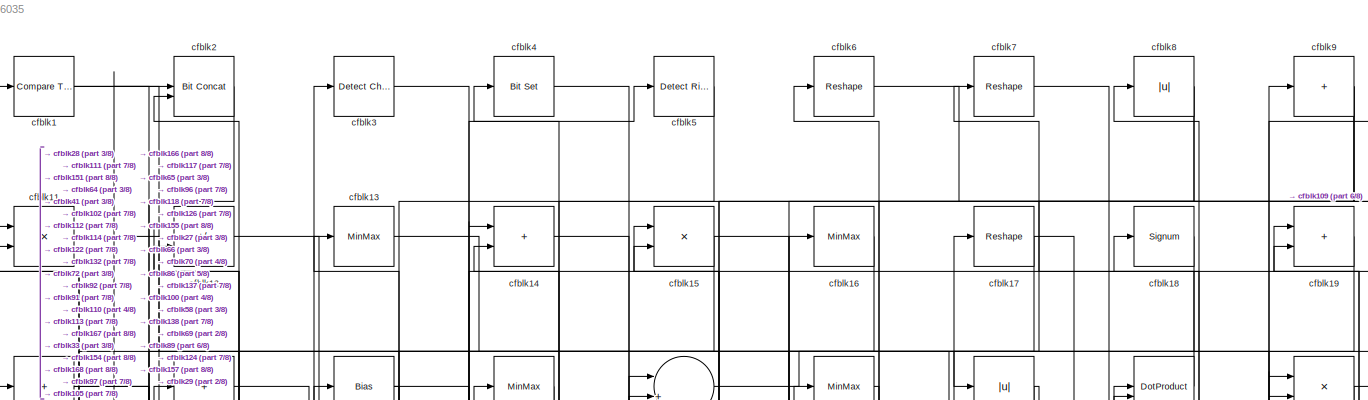
[diagram: root canvas - part 1/8, full width, top band]
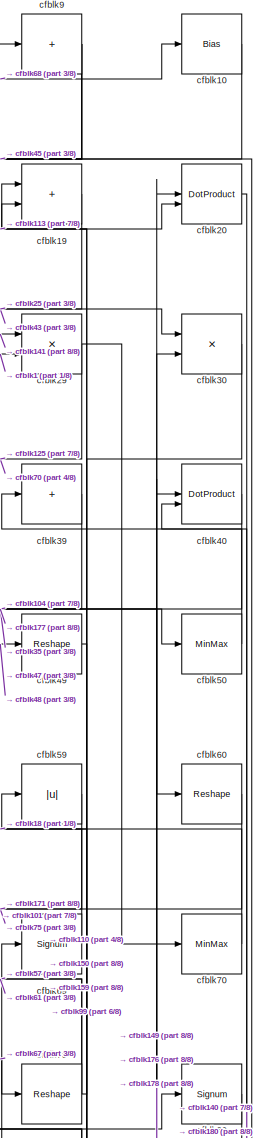
[diagram: root canvas - part 2/8, top right region]
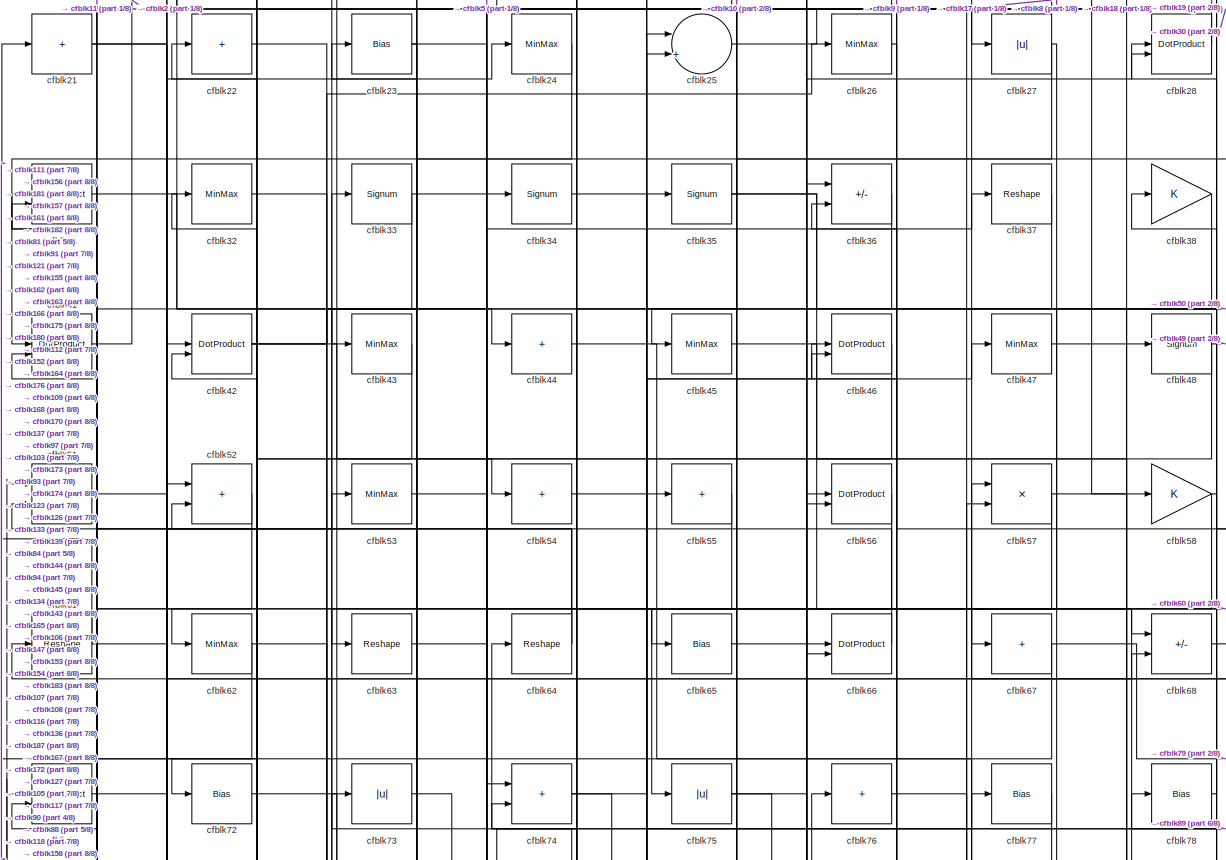
[diagram: root canvas - part 3/8, full width, top band]
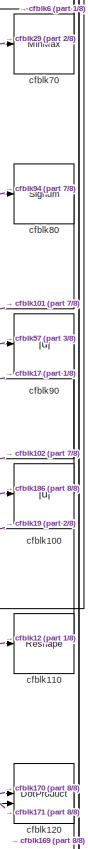
[diagram: root canvas - part 4/8, middle right region]
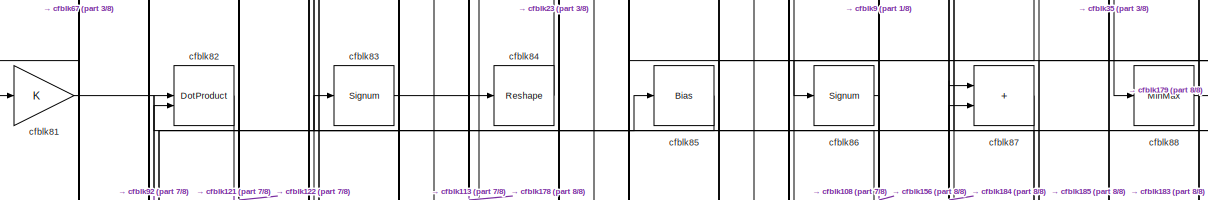
[diagram: root canvas - part 5/8, full width, middle band]
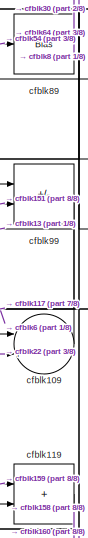
[diagram: root canvas - part 6/8, middle right region]
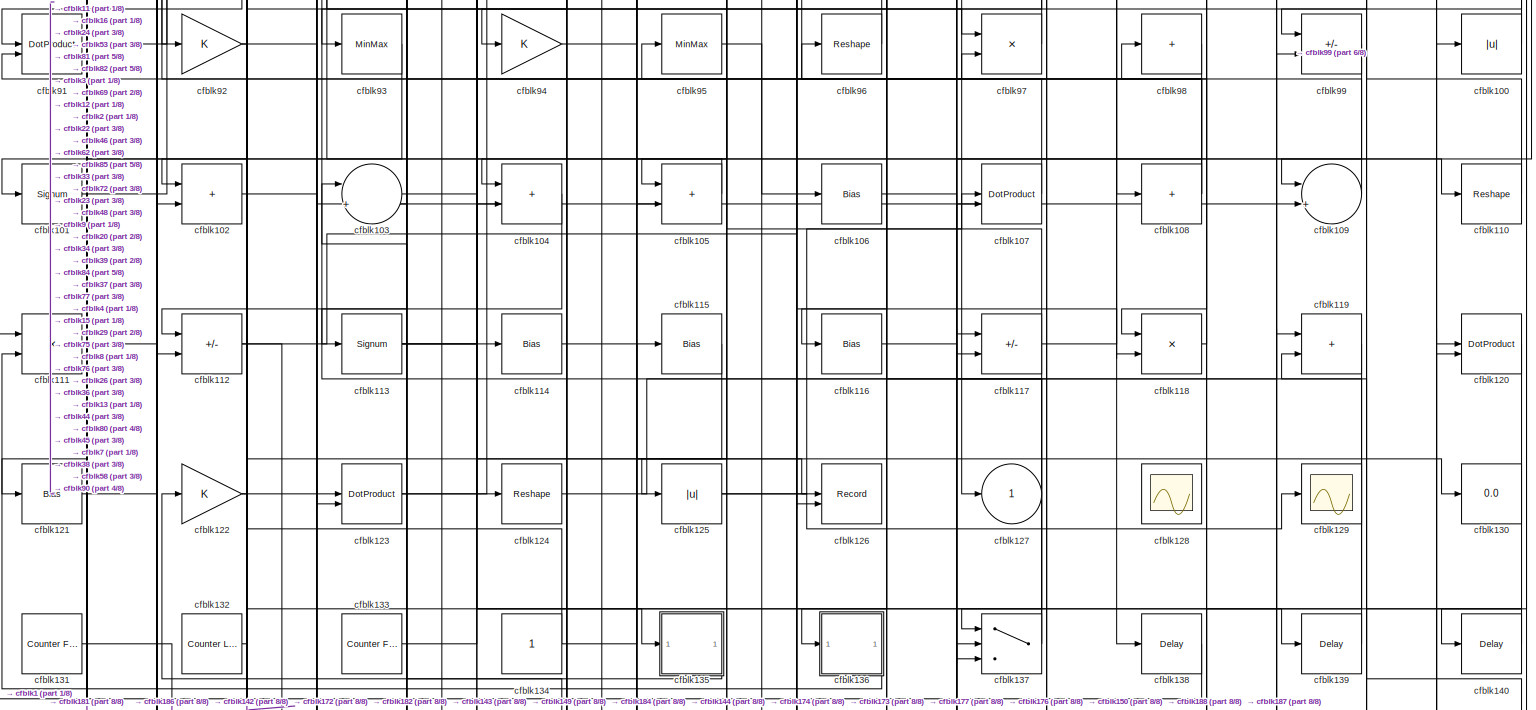
[diagram: root canvas - part 7/8, full width, middle band]
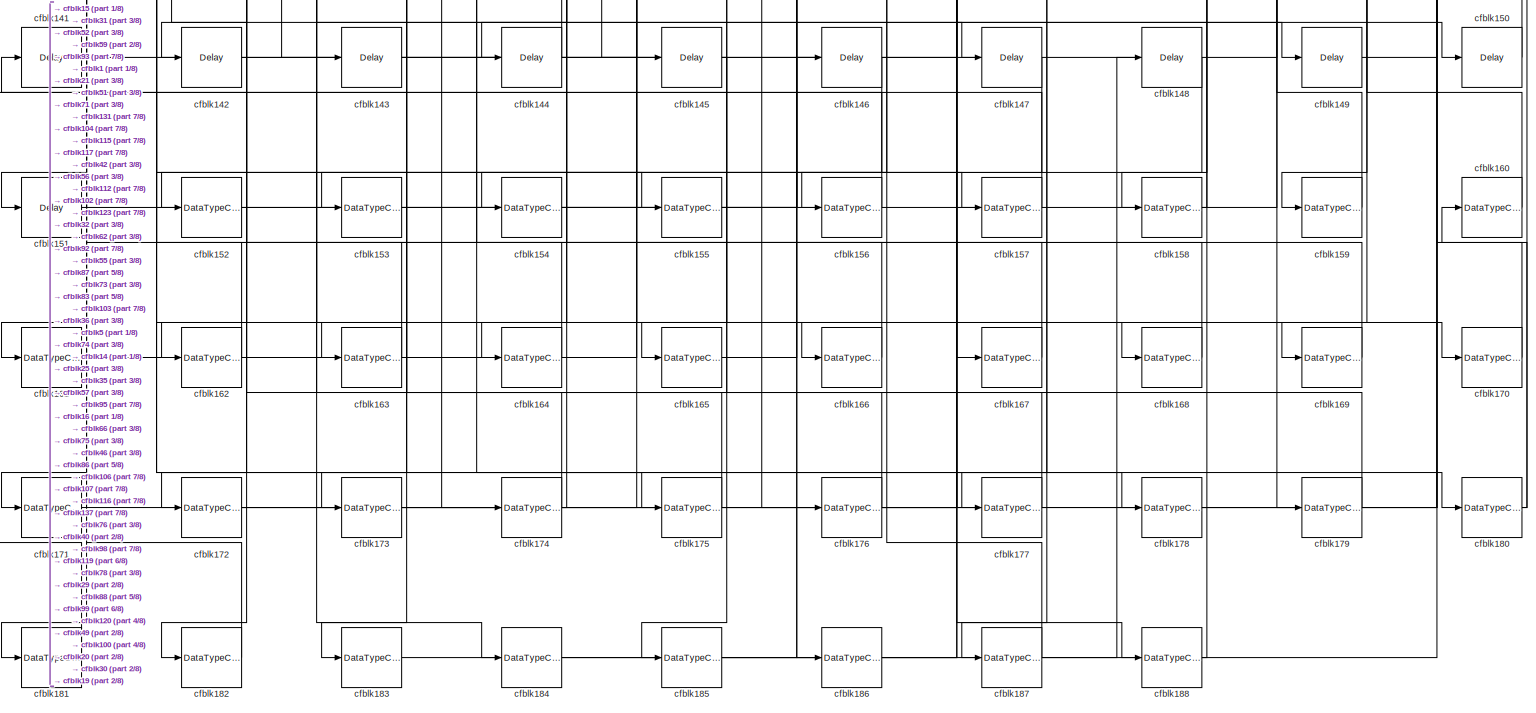
[diagram: root canvas - part 8/8, full width, bottom band]
MODEL slx_b8f495e16035
KIND model
CONFIG AbsTol = auto
CONFIG EnableMultiTasking = off
CONFIG FixedStep = auto
CONFIG MaxStep = auto
CONFIG MinStep = auto
CONFIG RelTol = 1e-3
CONFIG SampleTimeConstraint = Unconstrained
CONFIG SolverName = VariableStepAuto
CONFIG StartTime = 0.0
CONFIG StopTime = 10.0
BLOCK [Reference] cfblk1  REF=hdlsllib/Logic and Bit
Operations/Compare
To Zero
  SourceBlock = hdlsllib/Logic and Bit\nOperations/Compare\nTo Zero
  SourceType = Compare To Zero
BLOCK [Bias] cfblk10
  Bias = 0.0
  SaturateOnIntegerOverflow = off
BLOCK [Abs] cfblk100
  SaturateOnIntegerOverflow = off
BLOCK [Signum] cfblk101
BLOCK [Sum] cfblk102
  IconShape = rectangular
BLOCK [Sum] cfblk103
  Inputs = |++
BLOCK [Sum] cfblk104
  IconShape = rectangular
BLOCK [Sum] cfblk105
  IconShape = rectangular
BLOCK [Bias] cfblk106
  Bias = 0.0
  SaturateOnIntegerOverflow = off
BLOCK [DotProduct] cfblk107
  OutDataTypeStr = Inherit: Inherit via internal rule
BLOCK [Sum] cfblk108
  IconShape = rectangular
  Inputs = +
BLOCK [Sum] cfblk109
  Inputs = |++
BLOCK [Product] cfblk11
  Inputs = */
  RndMeth = Zero
  SaturateOnIntegerOverflow = on
BLOCK [Reshape] cfblk110
BLOCK [Product] cfblk111
  Inputs = */
  RndMeth = Zero
  SaturateOnIntegerOverflow = on
BLOCK [Sum] cfblk112
  IconShape = rectangular
  Inputs = +-
BLOCK [Signum] cfblk113
BLOCK [Bias] cfblk114
  Bias = 0.0
  SaturateOnIntegerOverflow = off
BLOCK [Bias] cfblk115
  Bias = 0.0
  SaturateOnIntegerOverflow = off
BLOCK [Bias] cfblk116
  Bias = 0.0
  SaturateOnIntegerOverflow = off
BLOCK [Sum] cfblk117
  IconShape = rectangular
  Inputs = +-
BLOCK [Product] cfblk118
  Inputs = */
  RndMeth = Zero
  SaturateOnIntegerOverflow = on
BLOCK [Sum] cfblk119
  IconShape = rectangular
BLOCK [Sum] cfblk12
  IconShape = rectangular
  Inputs = +-
BLOCK [DotProduct] cfblk120
  OutDataTypeStr = Inherit: Inherit via internal rule
BLOCK [Bias] cfblk121
  Bias = 0.0
  SaturateOnIntegerOverflow = off
BLOCK [Gain] cfblk122
BLOCK [DotProduct] cfblk123
  OutDataTypeStr = Inherit: Inherit via internal rule
BLOCK [Reshape] cfblk124
BLOCK [Abs] cfblk125
  SaturateOnIntegerOverflow = off
BLOCK [Record] cfblk126
  CompatibilityTag = XY
  FileSettingsInternal = {"entries":[{"content":{"excelSettings":{"content":{},"type":"Streamout.ExcelSettings"}},"type":"Streamout.FileSettingStorage","uuid":""}],"packageUris":["http:\/\/schema.mathworks.com\/mf0\/streamout_blocks\/R2020a"],"version":"1.0"}
  Layout = [1 1]
  SignalsInternal = {"entries":[{"content":{"signals":[{"content":{"blockPath":[],"dimensions":[1],"domain":"","lineColor":"#a2142f","plots":[1],"port":1,"signalID":3065,"signalName":"XY Graph:1"},"type":"RecordBlkView.Signal","uuid":""},{"content":{"blockPath":[],"dimensions":[1],"domain":"","lineColor":"#139fff","plots":[1],"port":2,"signalID":3068,"signalName":"XY Graph:2"},"type":"RecordBlkView.Signal","uuid":""}...<+146ch>
  VisualizationBindings = {"xyplotplugin":{"info":[{"series":[{"bindingParametersList":[{"parameter":"X-Axis","signalID":3065,"signalName":"XY Graph:1"},{"parameter":"Y-Axis","signalID":3068,"signalName":"XY Graph:2"}],"seriesID":25029}],"subplotID":1}]}}
  st = -1
BLOCK [Outport] cfblk127
  VectorParamsAs1DForOutWhenUnconnected = off
BLOCK [Scope] cfblk128
  Floating = on
  NumInputPorts = 1
  ScopeSpecificationString = Simulink.scopes.TimeScopeBlockCfg('CurrentConfiguration', extmgr.ConfigurationSet(extmgr.Configuration('Core','General UI',true,'FigureColor',[0.156862745098039 0.156862745098039 0.156862745098039]),extmgr.Configuration('Core','Source UI',true),extmgr.Configuration('Sources','WiredSimulink',true,'DataLoggingVariableName','ScopeData1','DataLoggingSaveFormat','StructureWithTime','DataLoggingLimitDat...<+2713ch>
BLOCK [Scope] cfblk129
  Floating = off
  NumInputPorts = 1
  ScopeSpecificationString = Simulink.scopes.TimeScopeBlockCfg('CurrentConfiguration', extmgr.ConfigurationSet(extmgr.Configuration('Core','General UI',true),extmgr.Configuration('Core','Source UI',true),extmgr.Configuration('Sources','WiredSimulink',true,'DataLoggingVariableName','ScopeData2','DataLoggingSaveFormat','Array','DataLoggingLimitDataPoints',true,'DataLoggingDecimation','1'),extmgr.Configuration('Visuals','Time Do...<+868ch>
BLOCK [MinMax] cfblk13
BLOCK [Display] cfblk130
  Decimation = 1
BLOCK [Reference] cfblk131  REF=hdlsllib/Sources/Counter
Free-Running
  SourceBlock = hdlsllib/Sources/Counter\nFree-Running
  SourceType = Counter Free-Running
BLOCK [Reference] cfblk132  REF=hdlsllib/Sources/Counter
Limited
  SourceBlock = hdlsllib/Sources/Counter\nLimited
  SourceType = Counter Limited
BLOCK [Reference] cfblk133  REF=hdlsllib/Sources/Counter
Free-Running
  SourceBlock = hdlsllib/Sources/Counter\nFree-Running
  SourceType = Counter Free-Running
BLOCK [Constant] cfblk134
  SampleTime = -1
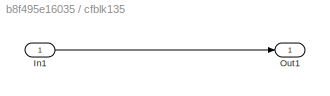
BLOCK [SubSystem] cfblk135
  LibrarySourceBlock = hdlsllib/Ports &\nSubsystems/Subsystem
BLOCK [Inport] cfblk135/In1
BLOCK [Outport] cfblk135/Out1
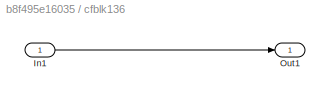
BLOCK [SubSystem] cfblk136
  LibrarySourceBlock = hdlsllib/Ports &\nSubsystems/Subsystem
BLOCK [Inport] cfblk136/In1
BLOCK [Outport] cfblk136/Out1
BLOCK [Switch] cfblk137
  InputSameDT = off
  SaturateOnIntegerOverflow = off
BLOCK [Delay] cfblk138
  InputPortMap = u0
  SampleTime = 1
BLOCK [Delay] cfblk139
  InputPortMap = u0
  SampleTime = 1
BLOCK [Sum] cfblk14
  IconShape = rectangular
BLOCK [Delay] cfblk140
  InputPortMap = u0
  SampleTime = 1
BLOCK [Delay] cfblk141
  InputPortMap = u0
  SampleTime = 1
BLOCK [Delay] cfblk142
  InputPortMap = u0
  SampleTime = 1
BLOCK [Delay] cfblk143
  InputPortMap = u0
  SampleTime = 1
BLOCK [Delay] cfblk144
  InputPortMap = u0
  SampleTime = 1
BLOCK [Delay] cfblk145
  InputPortMap = u0
  SampleTime = 1
BLOCK [Delay] cfblk146
  InputPortMap = u0
  SampleTime = 1
BLOCK [Delay] cfblk147
  InputPortMap = u0
  SampleTime = 1
BLOCK [Delay] cfblk148
  InputPortMap = u0
  SampleTime = 1
BLOCK [Delay] cfblk149
  InputPortMap = u0
  SampleTime = 1
BLOCK [Product] cfblk15
  Inputs = */
  RndMeth = Zero
  SaturateOnIntegerOverflow = on
BLOCK [Delay] cfblk150
  InputPortMap = u0
  SampleTime = 1
BLOCK [Delay] cfblk151
  InputPortMap = u0
  SampleTime = 1
BLOCK [DataTypeConversion] cfblk152
  OutDataTypeStr = uint8
  RndMeth = Floor
  SaturateOnIntegerOverflow = off
BLOCK [DataTypeConversion] cfblk153
  OutDataTypeStr = uint8
  RndMeth = Floor
  SaturateOnIntegerOverflow = off
BLOCK [DataTypeConversion] cfblk154
  OutDataTypeStr = uint8
  RndMeth = Floor
  SaturateOnIntegerOverflow = off
BLOCK [DataTypeConversion] cfblk155
  OutDataTypeStr = uint8
  RndMeth = Floor
  SaturateOnIntegerOverflow = off
BLOCK [DataTypeConversion] cfblk156
  OutDataTypeStr = uint8
  RndMeth = Floor
  SaturateOnIntegerOverflow = off
BLOCK [DataTypeConversion] cfblk157
  OutDataTypeStr = uint8
  RndMeth = Floor
  SaturateOnIntegerOverflow = off
BLOCK [DataTypeConversion] cfblk158
  OutDataTypeStr = uint8
  RndMeth = Floor
  SaturateOnIntegerOverflow = off
BLOCK [DataTypeConversion] cfblk159
  OutDataTypeStr = uint8
  RndMeth = Floor
  SaturateOnIntegerOverflow = off
BLOCK [MinMax] cfblk16
BLOCK [DataTypeConversion] cfblk160
  OutDataTypeStr = uint8
  RndMeth = Floor
  SaturateOnIntegerOverflow = off
BLOCK [DataTypeConversion] cfblk161
  RndMeth = Floor
  SaturateOnIntegerOverflow = off
BLOCK [DataTypeConversion] cfblk162
  OutDataTypeStr = uint8
  RndMeth = Floor
  SaturateOnIntegerOverflow = off
BLOCK [DataTypeConversion] cfblk163
  OutDataTypeStr = uint8
  RndMeth = Floor
  SaturateOnIntegerOverflow = off
BLOCK [DataTypeConversion] cfblk164
  OutDataTypeStr = uint8
  RndMeth = Floor
  SaturateOnIntegerOverflow = off
BLOCK [DataTypeConversion] cfblk165
  OutDataTypeStr = uint8
  RndMeth = Floor
  SaturateOnIntegerOverflow = off
BLOCK [DataTypeConversion] cfblk166
  OutDataTypeStr = uint8
  RndMeth = Floor
  SaturateOnIntegerOverflow = off
BLOCK [DataTypeConversion] cfblk167
  OutDataTypeStr = uint8
  RndMeth = Floor
  SaturateOnIntegerOverflow = off
BLOCK [DataTypeConversion] cfblk168
  OutDataTypeStr = uint8
  RndMeth = Floor
  SaturateOnIntegerOverflow = off
BLOCK [DataTypeConversion] cfblk169
  OutDataTypeStr = uint8
  RndMeth = Floor
  SaturateOnIntegerOverflow = off
BLOCK [Reshape] cfblk17
BLOCK [DataTypeConversion] cfblk170
  OutDataTypeStr = uint8
  RndMeth = Floor
  SaturateOnIntegerOverflow = off
BLOCK [DataTypeConversion] cfblk171
  OutDataTypeStr = uint8
  RndMeth = Floor
  SaturateOnIntegerOverflow = off
BLOCK [DataTypeConversion] cfblk172
  RndMeth = Floor
  SaturateOnIntegerOverflow = off
BLOCK [DataTypeConversion] cfblk173
  OutDataTypeStr = uint8
  RndMeth = Floor
  SaturateOnIntegerOverflow = off
BLOCK [DataTypeConversion] cfblk174
  RndMeth = Floor
  SaturateOnIntegerOverflow = off
BLOCK [DataTypeConversion] cfblk175
  OutDataTypeStr = uint8
  RndMeth = Floor
  SaturateOnIntegerOverflow = off
BLOCK [DataTypeConversion] cfblk176
  RndMeth = Floor
  SaturateOnIntegerOverflow = off
BLOCK [DataTypeConversion] cfblk177
  OutDataTypeStr = uint8
  RndMeth = Floor
  SaturateOnIntegerOverflow = off
BLOCK [DataTypeConversion] cfblk178
  OutDataTypeStr = uint8
  RndMeth = Floor
  SaturateOnIntegerOverflow = off
BLOCK [DataTypeConversion] cfblk179
  OutDataTypeStr = uint8
  RndMeth = Floor
  SaturateOnIntegerOverflow = off
BLOCK [Signum] cfblk18
BLOCK [DataTypeConversion] cfblk180
  RndMeth = Floor
  SaturateOnIntegerOverflow = off
BLOCK [DataTypeConversion] cfblk181
  OutDataTypeStr = uint8
  RndMeth = Floor
  SaturateOnIntegerOverflow = off
BLOCK [DataTypeConversion] cfblk182
  OutDataTypeStr = uint8
  RndMeth = Floor
  SaturateOnIntegerOverflow = off
BLOCK [DataTypeConversion] cfblk183
  OutDataTypeStr = uint8
  RndMeth = Floor
  SaturateOnIntegerOverflow = off
BLOCK [DataTypeConversion] cfblk184
  OutDataTypeStr = uint8
  RndMeth = Floor
  SaturateOnIntegerOverflow = off
BLOCK [DataTypeConversion] cfblk185
  OutDataTypeStr = uint8
  RndMeth = Floor
  SaturateOnIntegerOverflow = off
BLOCK [DataTypeConversion] cfblk186
  OutDataTypeStr = uint8
  RndMeth = Floor
  SaturateOnIntegerOverflow = off
BLOCK [DataTypeConversion] cfblk187
  RndMeth = Floor
  SaturateOnIntegerOverflow = off
BLOCK [DataTypeConversion] cfblk188
  OutDataTypeStr = uint8
  RndMeth = Floor
  SaturateOnIntegerOverflow = off
BLOCK [Sum] cfblk19
  IconShape = rectangular
BLOCK [Reference] cfblk2  REF=hdlsllib/Logic and Bit
Operations/Bit Concat
  SourceBlock = hdlsllib/Logic and Bit\nOperations/Bit Concat
  SourceType = Bit Concat
BLOCK [DotProduct] cfblk20
  OutDataTypeStr = Inherit: Inherit via internal rule
BLOCK [Sum] cfblk21
  IconShape = rectangular
  Inputs = +
BLOCK [Sum] cfblk22
  IconShape = rectangular
  Inputs = +
BLOCK [Bias] cfblk23
  Bias = 0.0
  SaturateOnIntegerOverflow = off
BLOCK [MinMax] cfblk24
BLOCK [Sum] cfblk25
  Inputs = |++
BLOCK [MinMax] cfblk26
BLOCK [Abs] cfblk27
  SaturateOnIntegerOverflow = off
BLOCK [DotProduct] cfblk28
  OutDataTypeStr = Inherit: Inherit via internal rule
BLOCK [Product] cfblk29
  Inputs = */
  RndMeth = Zero
  SaturateOnIntegerOverflow = on
BLOCK [Reference] cfblk3  REF=simulink/Logic and Bit
Operations/Detect
Change
  LibrarySourceBlock = hdlsllib/Logic and Bit\nOperations/Detect\nChange
  SourceBlock = simulink/Logic and Bit\nOperations/Detect\nChange
  SourceType = Detect Change
BLOCK [Product] cfblk30
  Inputs = */
  RndMeth = Zero
  SaturateOnIntegerOverflow = on
BLOCK [DotProduct] cfblk31
  OutDataTypeStr = Inherit: Inherit via internal rule
BLOCK [MinMax] cfblk32
BLOCK [Signum] cfblk33
BLOCK [Signum] cfblk34
BLOCK [Signum] cfblk35
BLOCK [Sum] cfblk36
  IconShape = rectangular
  Inputs = +-
BLOCK [Reshape] cfblk37
BLOCK [Gain] cfblk38
BLOCK [Sum] cfblk39
  IconShape = rectangular
  Inputs = +
BLOCK [Reference] cfblk4  REF=simulink/Logic and Bit
Operations/Bit Set
  LibrarySourceBlock = hdlsllib/Logic and Bit\nOperations/Bit Set
  SourceBlock = simulink/Logic and Bit\nOperations/Bit Set
  SourceType = Bit Set
BLOCK [DotProduct] cfblk40
  OutDataTypeStr = Inherit: Inherit via internal rule
BLOCK [DotProduct] cfblk41
  OutDataTypeStr = Inherit: Inherit via internal rule
BLOCK [DotProduct] cfblk42
  OutDataTypeStr = Inherit: Inherit via internal rule
BLOCK [MinMax] cfblk43
BLOCK [Sum] cfblk44
  IconShape = rectangular
  Inputs = +
BLOCK [MinMax] cfblk45
BLOCK [DotProduct] cfblk46
  OutDataTypeStr = Inherit: Inherit via internal rule
BLOCK [MinMax] cfblk47
BLOCK [Signum] cfblk48
BLOCK [Reshape] cfblk49
BLOCK [Reference] cfblk5  REF=hdlsllib/Logic and Bit
Operations/Detect Rise
Nonnegative
  SourceBlock = hdlsllib/Logic and Bit\nOperations/Detect Rise\nNonnegative
  SourceType = Detect Rise Nonnegative
BLOCK [MinMax] cfblk50
BLOCK [Product] cfblk51
  Inputs = */
  RndMeth = Zero
  SaturateOnIntegerOverflow = on
BLOCK [Sum] cfblk52
  IconShape = rectangular
BLOCK [MinMax] cfblk53
BLOCK [Sum] cfblk54
  IconShape = rectangular
  Inputs = +
BLOCK [Sum] cfblk55
  IconShape = rectangular
  Inputs = +
BLOCK [DotProduct] cfblk56
  OutDataTypeStr = Inherit: Inherit via internal rule
BLOCK [Product] cfblk57
  Inputs = */
  RndMeth = Zero
  SaturateOnIntegerOverflow = on
BLOCK [Gain] cfblk58
BLOCK [Abs] cfblk59
  SaturateOnIntegerOverflow = off
BLOCK [Reshape] cfblk6
BLOCK [Reshape] cfblk60
BLOCK [Reshape] cfblk61
BLOCK [MinMax] cfblk62
BLOCK [Reshape] cfblk63
BLOCK [Reshape] cfblk64
BLOCK [Bias] cfblk65
  Bias = 0.0
  SaturateOnIntegerOverflow = off
BLOCK [DotProduct] cfblk66
  OutDataTypeStr = Inherit: Inherit via internal rule
BLOCK [Sum] cfblk67
  IconShape = rectangular
  Inputs = +
BLOCK [Sum] cfblk68
  IconShape = rectangular
  Inputs = +-
BLOCK [Signum] cfblk69
BLOCK [Reshape] cfblk7
BLOCK [MinMax] cfblk70
BLOCK [DotProduct] cfblk71
  OutDataTypeStr = Inherit: Inherit via internal rule
BLOCK [Bias] cfblk72
  Bias = 0.0
  SaturateOnIntegerOverflow = off
BLOCK [Abs] cfblk73
  SaturateOnIntegerOverflow = off
BLOCK [Sum] cfblk74
  IconShape = rectangular
BLOCK [Abs] cfblk75
  SaturateOnIntegerOverflow = off
BLOCK [Sum] cfblk76
  IconShape = rectangular
  Inputs = +
BLOCK [Bias] cfblk77
  Bias = 0.0
  SaturateOnIntegerOverflow = off
BLOCK [Bias] cfblk78
  Bias = 0.0
  SaturateOnIntegerOverflow = off
BLOCK [Reshape] cfblk79
BLOCK [Abs] cfblk8
  SaturateOnIntegerOverflow = off
BLOCK [Signum] cfblk80
BLOCK [Gain] cfblk81
BLOCK [DotProduct] cfblk82
  OutDataTypeStr = Inherit: Inherit via internal rule
BLOCK [Signum] cfblk83
BLOCK [Reshape] cfblk84
BLOCK [Bias] cfblk85
  Bias = 0.0
  SaturateOnIntegerOverflow = off
BLOCK [Signum] cfblk86
BLOCK [Sum] cfblk87
  IconShape = rectangular
BLOCK [MinMax] cfblk88
BLOCK [Bias] cfblk89
  Bias = 0.0
  SaturateOnIntegerOverflow = off
BLOCK [Sum] cfblk9
  IconShape = rectangular
  Inputs = +
BLOCK [Abs] cfblk90
  SaturateOnIntegerOverflow = off
BLOCK [DotProduct] cfblk91
  OutDataTypeStr = Inherit: Inherit via internal rule
BLOCK [Gain] cfblk92
BLOCK [MinMax] cfblk93
BLOCK [Gain] cfblk94
BLOCK [MinMax] cfblk95
BLOCK [Reshape] cfblk96
BLOCK [Product] cfblk97
  Inputs = */
  RndMeth = Zero
  SaturateOnIntegerOverflow = on
BLOCK [Sum] cfblk98
  IconShape = rectangular
  Inputs = +
BLOCK [Sum] cfblk99
  IconShape = rectangular
  Inputs = +-
LINE cfblk100:1 -> cfblk17:1
LINE cfblk101:1 -> cfblk69:1
LINE cfblk102:1 -> cfblk184:1
LINE cfblk103:1 -> cfblk135:1
LINE cfblk104:1 -> cfblk142:1
LINE cfblk105:1 -> cfblk104:1
LINE cfblk106:1 -> cfblk188:1
LINE cfblk107:1 -> cfblk76:1
NET cfblk108:1 -> cfblk36:2, cfblk82:1, cfblk91:2
LINE cfblk109:1 -> cfblk13:1
LINE cfblk10:1 -> cfblk45:1
LINE cfblk110:1 -> cfblk19:1
NET cfblk111:1 -> cfblk11:2, cfblk24:1
NET cfblk112:1 -> cfblk143:1, cfblk36:1
NET cfblk113:1 -> cfblk20:2, cfblk84:1, cfblk97:2
LINE cfblk114:1 -> cfblk130:1
LINE cfblk115:1 -> cfblk172:1
LINE cfblk116:1 -> cfblk150:1
NET cfblk117:1 -> cfblk15:2, cfblk182:1, cfblk48:1
LINE cfblk118:1 -> cfblk38:1
LINE cfblk119:1 -> cfblk158:1
LINE cfblk11:1 -> cfblk114:1
LINE cfblk120:1 -> cfblk169:1
LINE cfblk121:1 -> cfblk53:1
NET cfblk122:1 -> cfblk12:2, cfblk85:1
NET cfblk123:1 -> cfblk37:1, cfblk77:1
LINE cfblk124:1 -> cfblk9:1
NET cfblk125:1 -> cfblk107:1, cfblk129:1
LINE cfblk12:1 -> cfblk110:1
LINE cfblk131:1 -> cfblk186:1
LINE cfblk132:1 -> cfblk12:1
LINE cfblk133:1 -> cfblk34:1
NET cfblk134:1 -> cfblk22:1, cfblk46:1
LINE cfblk135/In1:1 -> cfblk135/Out1:1
LINE cfblk135:1 -> cfblk122:1
LINE cfblk136/In1:1 -> cfblk136/Out1:1
LINE cfblk136:1 -> cfblk111:2
NET cfblk137:1 -> cfblk33:1, cfblk96:1
LINE cfblk138:1 -> cfblk1:1
LINE cfblk139:1 -> cfblk117:1
LINE cfblk13:1 -> cfblk137:3
LINE cfblk140:1 -> cfblk137:1
LINE cfblk141:1 -> cfblk29:1
LINE cfblk142:1 -> cfblk137:2
LINE cfblk143:1 -> cfblk25:2
LINE cfblk144:1 -> cfblk103:1
LINE cfblk145:1 -> cfblk185:1
LINE cfblk146:1 -> cfblk164:1
LINE cfblk147:1 -> cfblk162:1
LINE cfblk148:1 -> cfblk153:1
LINE cfblk149:1 -> cfblk30:2
LINE cfblk14:1 -> cfblk166:1
LINE cfblk150:1 -> cfblk19:2
LINE cfblk151:1 -> cfblk99:2
LINE cfblk152:1 -> cfblk25:1
LINE cfblk153:1 -> cfblk56:1
LINE cfblk154:1 -> cfblk56:2
LINE cfblk155:1 -> cfblk16:1
LINE cfblk156:1 -> cfblk71:1
LINE cfblk157:1 -> cfblk71:2
LINE cfblk158:1 -> cfblk78:1
LINE cfblk159:1 -> cfblk119:1
NET cfblk15:1 -> cfblk118:2, cfblk151:1
LINE cfblk160:1 -> cfblk119:2
NET cfblk161:1 -> cfblk31:2, cfblk35:1
LINE cfblk162:1 -> cfblk52:1
LINE cfblk163:1 -> cfblk52:2
LINE cfblk164:1 -> cfblk42:2
LINE cfblk165:1 -> cfblk146:1
LINE cfblk166:1 -> cfblk42:1
LINE cfblk167:1 -> cfblk14:1
LINE cfblk168:1 -> cfblk14:2
LINE cfblk169:1 -> cfblk141:1
LINE cfblk16:1 -> cfblk112:2
LINE cfblk170:1 -> cfblk120:1
LINE cfblk171:1 -> cfblk120:2
NET cfblk172:1 -> cfblk107:2, cfblk57:2
LINE cfblk173:1 -> cfblk115:1
NET cfblk174:1 -> cfblk123:1, cfblk74:2
LINE cfblk175:1 -> cfblk73:1
NET cfblk176:1 -> cfblk20:1, cfblk32:1
LINE cfblk177:1 -> cfblk95:1
LINE cfblk178:1 -> cfblk40:1
LINE cfblk179:1 -> cfblk83:1
NET cfblk17:1 -> cfblk58:1, cfblk66:2
NET cfblk180:1 -> cfblk160:1, cfblk40:2
LINE cfblk181:1 -> cfblk51:1
LINE cfblk182:1 -> cfblk51:2
LINE cfblk183:1 -> cfblk66:1
LINE cfblk184:1 -> cfblk87:1
LINE cfblk185:1 -> cfblk87:2
LINE cfblk186:1 -> cfblk100:1
NET cfblk187:1 -> cfblk148:1, cfblk46:2
LINE cfblk188:1 -> cfblk98:1
LINE cfblk18:1 -> cfblk72:1
LINE cfblk19:1 -> cfblk43:1
NET cfblk1:1 -> cfblk157:1, cfblk29:2
LINE cfblk20:1 -> cfblk140:1
NET cfblk21:1 -> cfblk163:1, cfblk175:1
LINE cfblk22:1 -> cfblk109:2
NET cfblk23:1 -> cfblk126:1, cfblk93:1
LINE cfblk24:1 -> cfblk63:1
LINE cfblk25:1 -> cfblk30:1
LINE cfblk26:1 -> cfblk116:1
NET cfblk27:1 -> cfblk41:1, cfblk67:1
LINE cfblk28:1 -> cfblk7:1
NET cfblk29:1 -> cfblk125:1, cfblk70:1
LINE cfblk2:1 -> cfblk102:2
LINE cfblk30:1 -> cfblk99:1
LINE cfblk31:1 -> cfblk74:1
LINE cfblk32:1 -> cfblk170:1
NET cfblk33:1 -> cfblk123:2, cfblk5:1
LINE cfblk34:1 -> cfblk55:1
NET cfblk35:1 -> cfblk60:1, cfblk88:1
LINE cfblk36:1 -> cfblk144:1
LINE cfblk37:1 -> cfblk136:1
LINE cfblk38:1 -> cfblk91:1
LINE cfblk39:1 -> cfblk104:2
LINE cfblk3:1 -> cfblk124:1
LINE cfblk40:1 -> cfblk177:1
LINE cfblk41:1 -> cfblk2:1
NET cfblk42:1 -> cfblk26:1, cfblk44:1, cfblk54:1
LINE cfblk43:1 -> cfblk62:1
LINE cfblk44:1 -> cfblk127:1
LINE cfblk45:1 -> cfblk108:1
LINE cfblk46:1 -> cfblk112:1
LINE cfblk47:1 -> cfblk50:1
NET cfblk48:1 -> cfblk103:2, cfblk49:1
LINE cfblk49:1 -> cfblk159:1
LINE cfblk4:1 -> cfblk105:2
LINE cfblk50:1 -> cfblk39:1
LINE cfblk51:1 -> cfblk180:1
LINE cfblk52:1 -> cfblk161:1
LINE cfblk53:1 -> cfblk139:1
LINE cfblk54:1 -> cfblk89:1
LINE cfblk55:1 -> cfblk173:1
LINE cfblk56:1 -> cfblk152:1
NET cfblk57:1 -> cfblk165:1, cfblk90:1
NET cfblk58:1 -> cfblk118:1, cfblk94:1
LINE cfblk59:1 -> cfblk171:1
LINE cfblk5:1 -> cfblk154:1
LINE cfblk60:1 -> cfblk75:1
NET cfblk61:1 -> cfblk21:1, cfblk68:2
NET cfblk62:1 -> cfblk111:1, cfblk168:1
LINE cfblk63:1 -> cfblk68:1
NET cfblk64:1 -> cfblk11:1, cfblk41:2
LINE cfblk65:1 -> cfblk28:1
LINE cfblk66:1 -> cfblk31:1
NET cfblk67:1 -> cfblk79:1, cfblk81:1
LINE cfblk68:1 -> cfblk10:1
LINE cfblk69:1 -> cfblk18:1
LINE cfblk6:1 -> cfblk109:1
LINE cfblk70:1 -> cfblk6:1
LINE cfblk71:1 -> cfblk155:1
LINE cfblk72:1 -> cfblk97:1
LINE cfblk73:1 -> cfblk174:1
NET cfblk74:1 -> cfblk145:1, cfblk47:1
NET cfblk75:1 -> cfblk106:1, cfblk147:1
LINE cfblk76:1 -> cfblk167:1
LINE cfblk77:1 -> cfblk105:1
LINE cfblk78:1 -> cfblk28:2
NET cfblk79:1 -> cfblk57:1, cfblk59:1, cfblk61:1
LINE cfblk7:1 -> cfblk138:1
LINE cfblk80:1 -> cfblk101:1
LINE cfblk81:1 -> cfblk92:1
LINE cfblk82:1 -> cfblk121:1
LINE cfblk83:1 -> cfblk178:1
LINE cfblk84:1 -> cfblk23:1
LINE cfblk85:1 -> cfblk82:2
LINE cfblk86:1 -> cfblk156:1
LINE cfblk87:1 -> cfblk183:1
LINE cfblk88:1 -> cfblk179:1
NET cfblk89:1 -> cfblk64:1, cfblk8:1
NET cfblk8:1 -> cfblk126:2, cfblk27:1
LINE cfblk90:1 -> cfblk102:1
LINE cfblk91:1 -> cfblk3:1
NET cfblk92:1 -> cfblk149:1, cfblk2:2
LINE cfblk93:1 -> cfblk181:1
LINE cfblk94:1 -> cfblk80:1
LINE cfblk95:1 -> cfblk176:1
LINE cfblk96:1 -> cfblk15:1
LINE cfblk97:1 -> cfblk4:1
LINE cfblk98:1 -> cfblk187:1
LINE cfblk99:1 -> cfblk117:2
NET cfblk9:1 -> cfblk113:1, cfblk65:1, cfblk86:1
note: NET lines group one-source signal fan-out (src -> all destinations, sorted); 1:1 wires keep LINE
